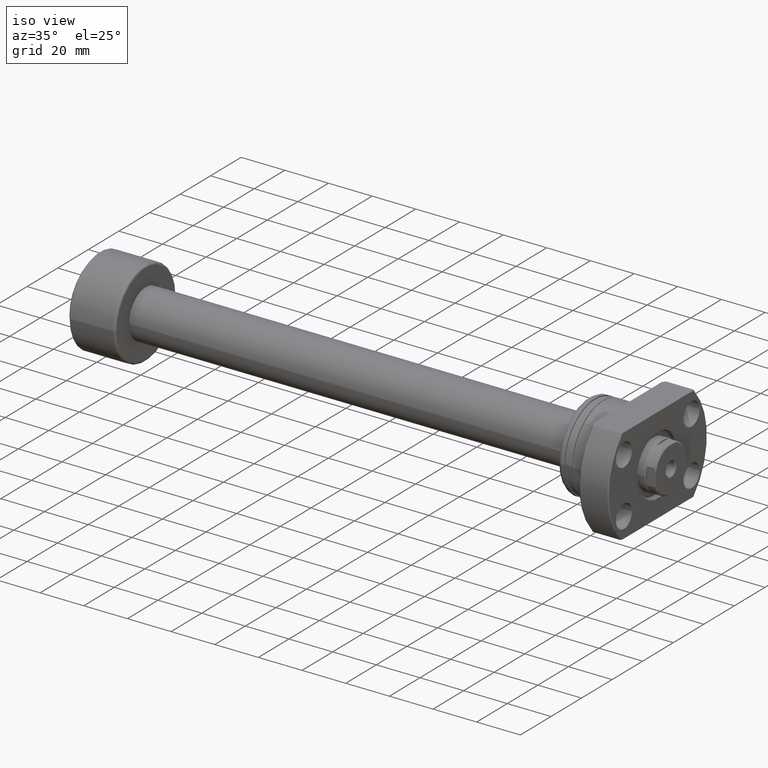
[diagram: clean part render]
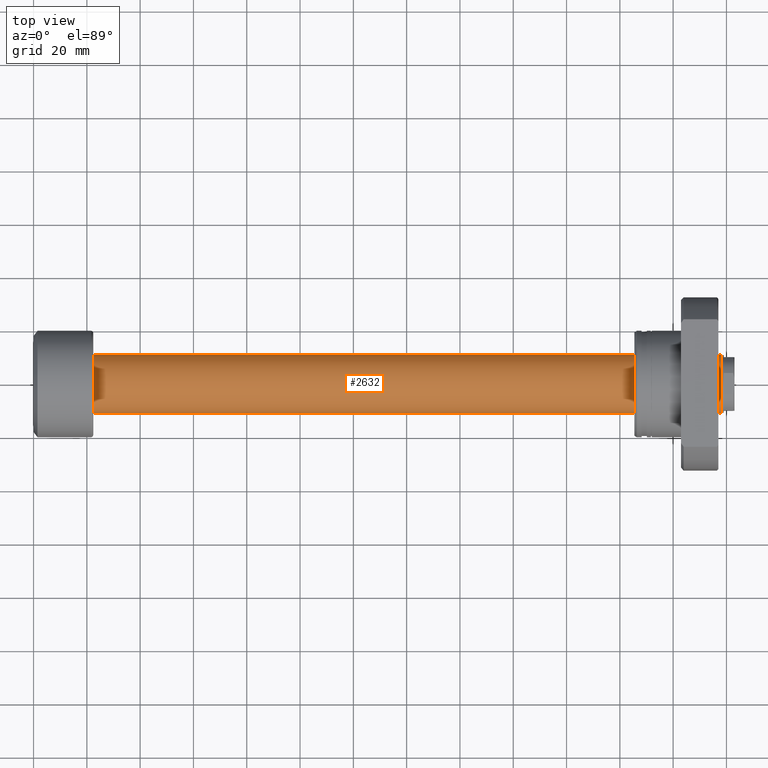
[diagram: tour spotlight — one face highlighted and labeled with its STEP entity id]
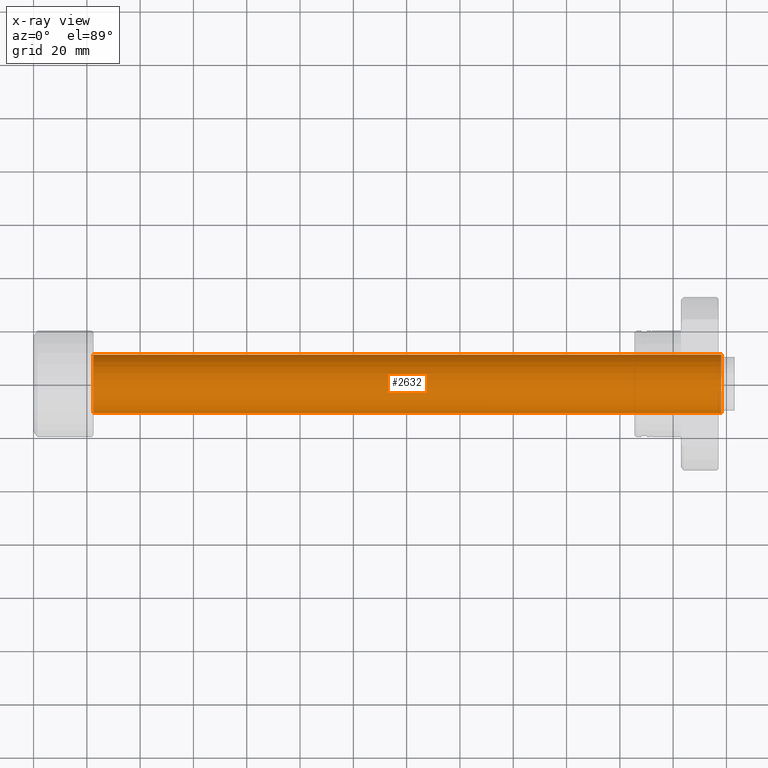
[diagram: x-ray of the same camera — body ghosted, this tour face saturated]
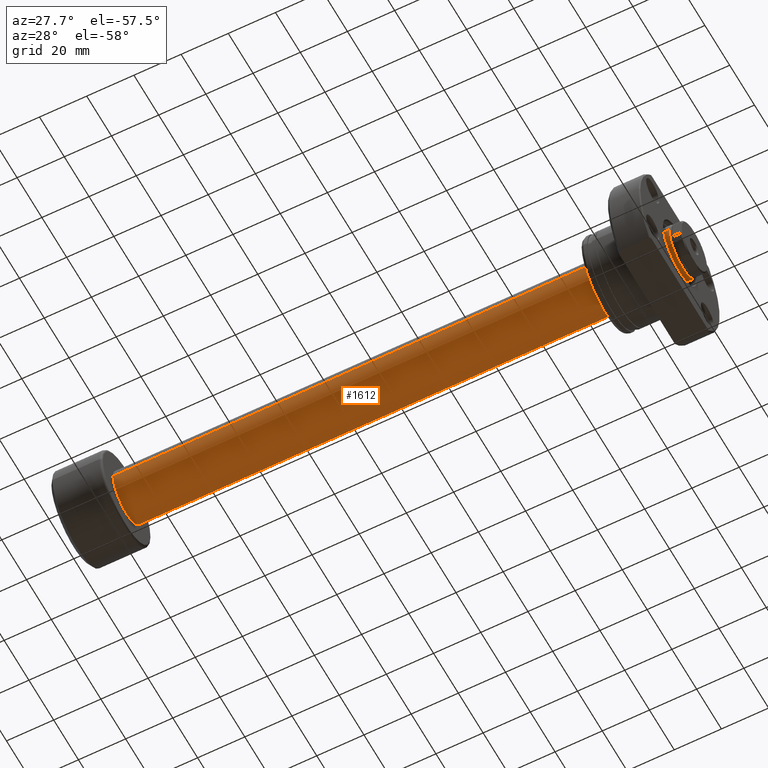
[diagram: tour spotlight — one face highlighted and labeled with its STEP entity id]
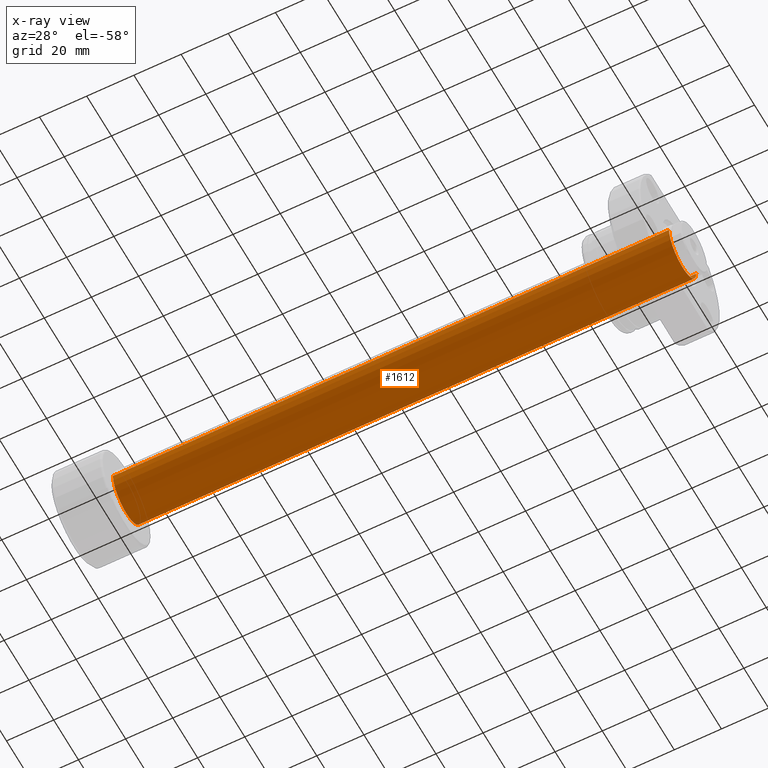
[diagram: x-ray of the same camera — body ghosted, this tour face saturated]
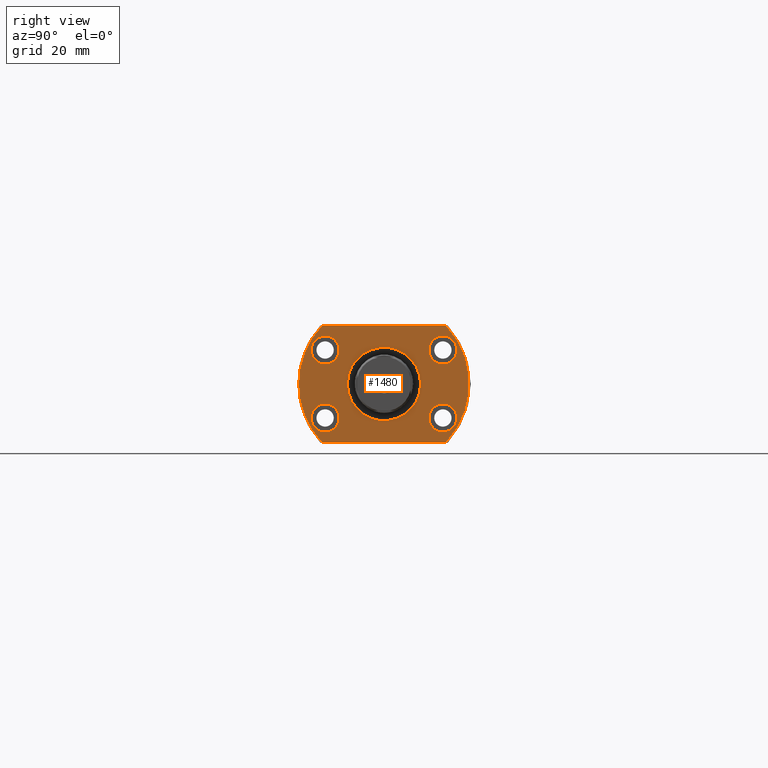
[diagram: tour spotlight — one face highlighted and labeled with its STEP entity id]
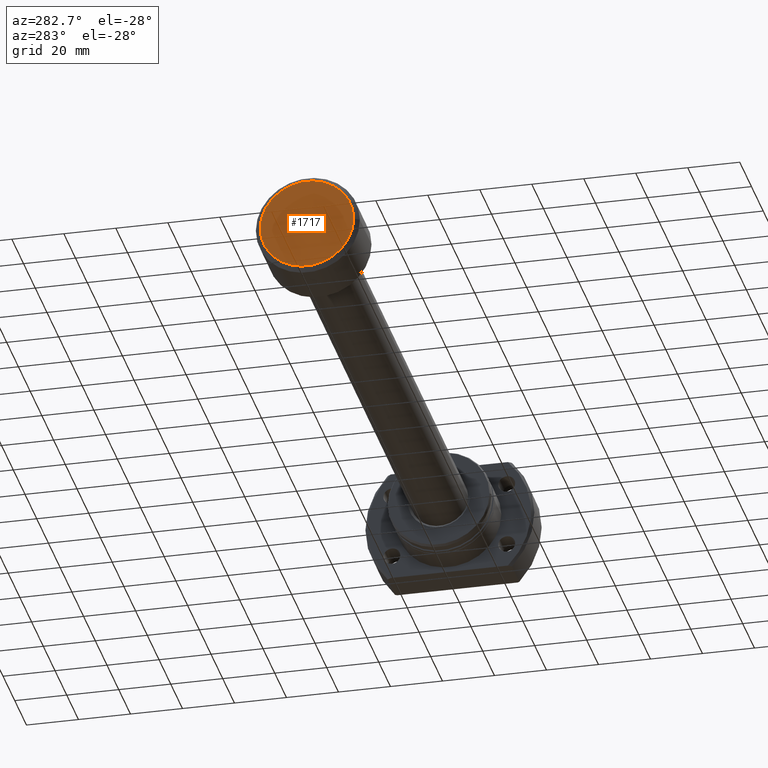
[diagram: tour spotlight — one face highlighted and labeled with its STEP entity id]
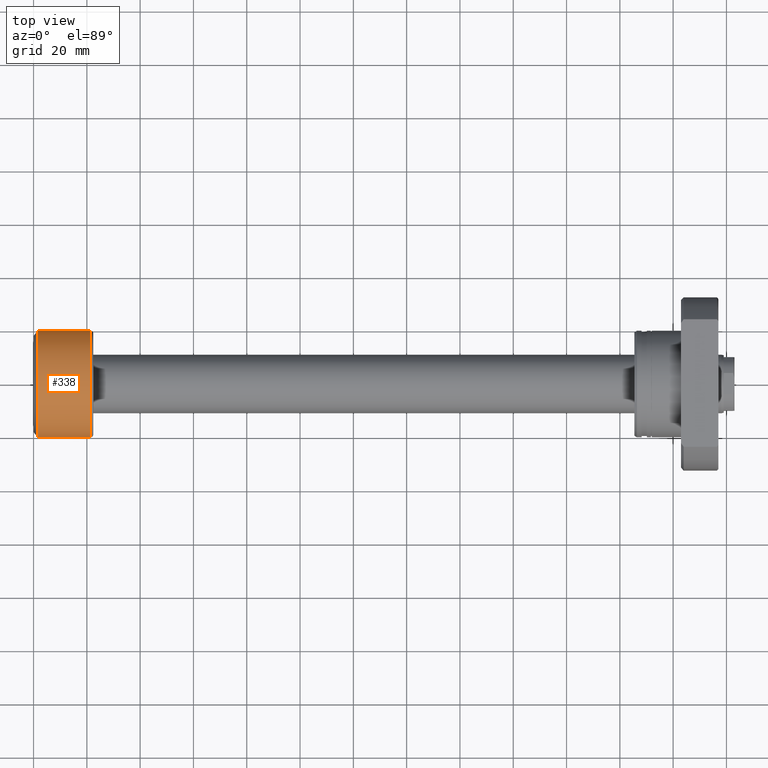
[diagram: tour spotlight — one face highlighted and labeled with its STEP entity id]
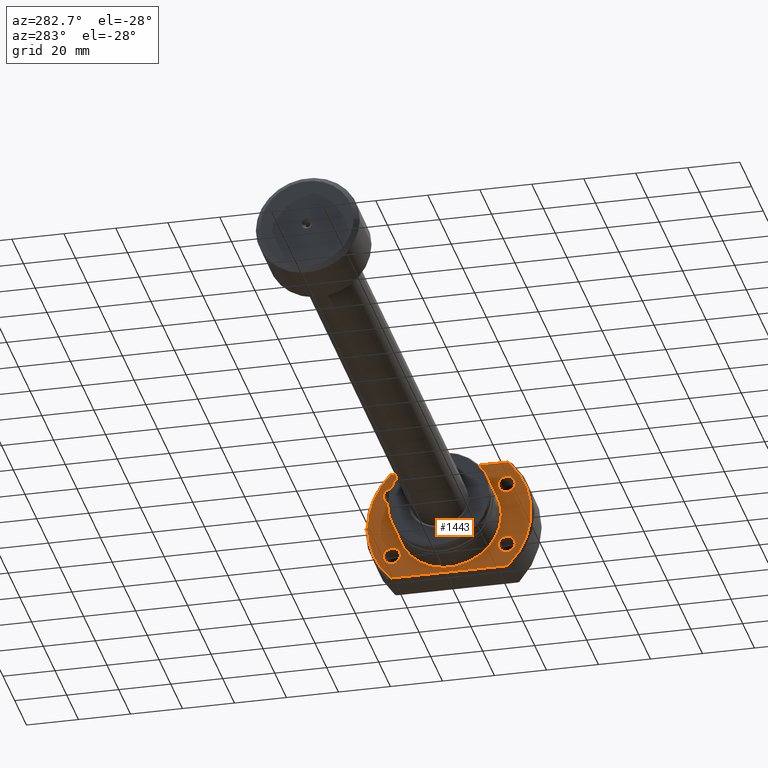
[diagram: tour spotlight — one face highlighted and labeled with its STEP entity id]
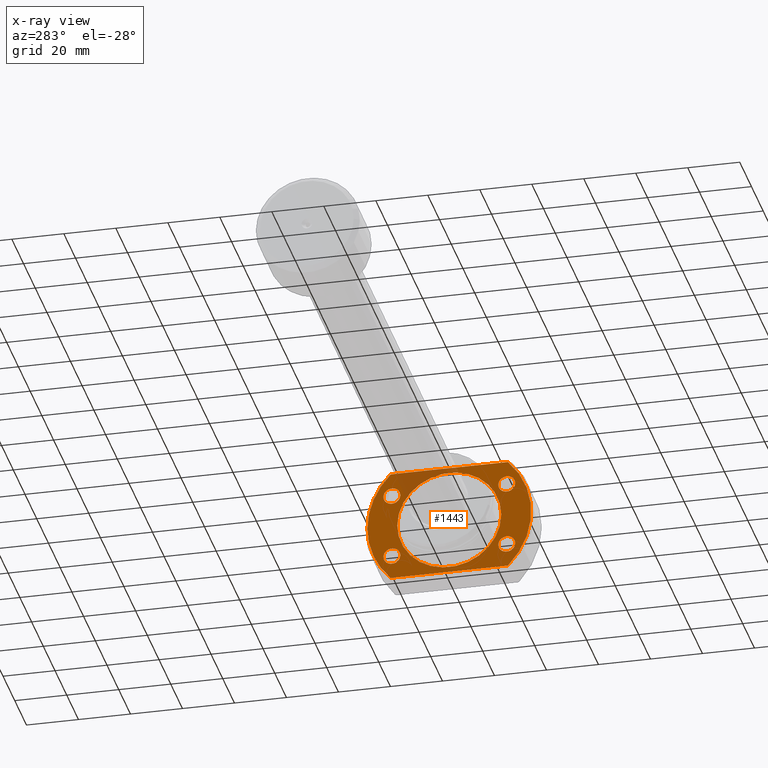
[diagram: x-ray of the same camera — body ghosted, this tour face saturated]
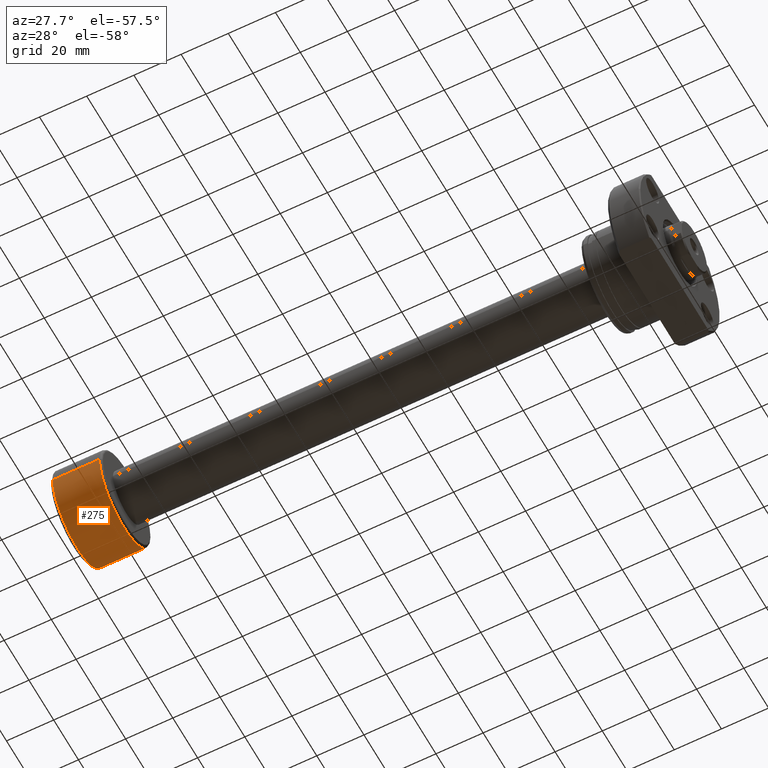
[diagram: tour spotlight — one face highlighted and labeled with its STEP entity id]
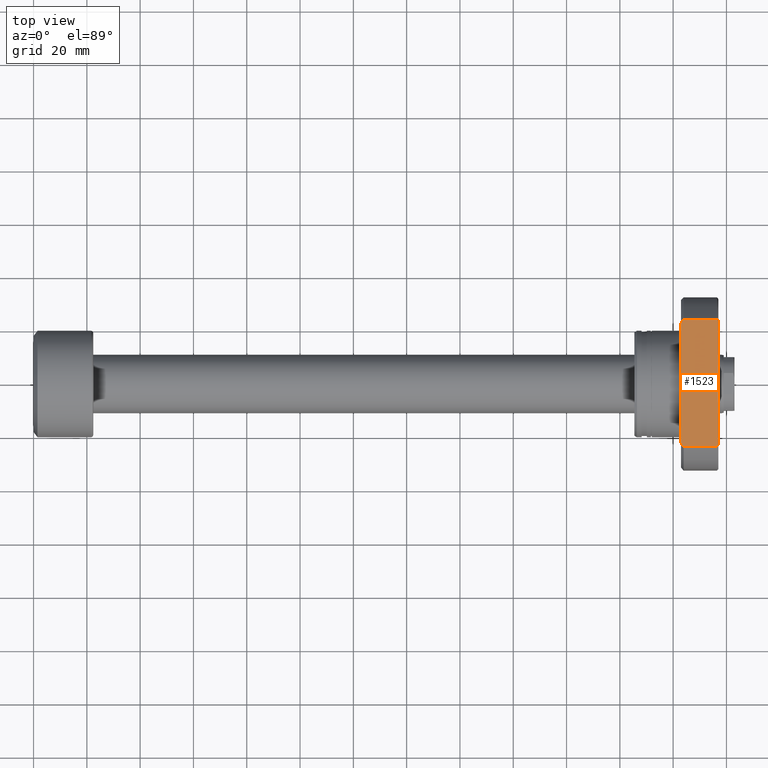
[diagram: tour spotlight — one face highlighted and labeled with its STEP entity id]
A machine part: a face-by-face anatomy tour. The part has 103 B-rep faces; the first image is the clean iso view, then the 8 largest visible faces are spotlighted one at a time (largest first), each with its STEP entity span.

Face 1 — top view, entity #2632. An x-ray twin of the same camera follows (body ghosted, this face saturated) — the face is partly hidden behind the body. In plain terms, the highlighted cylindrical surface (edge-blend (fillet) strip) has radius 11 mm, axis along (-1, -0, -0).
Definition (entity closure, byte-faithful):
#317 = DIRECTION ( 'NONE',  ( -1.000000000000000000, -1.069542322069065801E-17, -0.000000000000000000 ) ) ;
#392 = CARTESIAN_POINT ( 'NONE',  ( 258.0667575123237611, -11.00000000000019362, 0.000000000000000000 ) ) ;
#507 = EDGE_CURVE ( 'NONE', #1371, #2502, #2285, .T. ) ;
#621 = ORIENTED_EDGE ( 'NONE', *, *, #2974, .F. ) ;
#690 = VERTEX_POINT ( 'NONE', #2686 ) ;
#802 = AXIS2_PLACEMENT_3D ( 'NONE', #1854, #1578, #2058 ) ;
#926 = DIRECTION ( 'NONE',  ( -1.000000000000000000, -1.069542322069065801E-17, -0.000000000000000000 ) ) ;
#1084 = CARTESIAN_POINT ( 'NONE',  ( 258.0667575123237611, 11.00000000000020073, 1.347111479062112859E-15 ) ) ;
#1110 = VECTOR ( 'NONE', #1472, 1000.000000000000000 ) ;
#1131 = DIRECTION ( 'NONE',  ( 0.000000000000000000, -1.000000000000000000, 0.000000000000000000 ) ) ;
#1229 = CARTESIAN_POINT ( 'NONE',  ( 0.000000000000000000, 0.000000000000000000, 0.000000000000000000 ) ) ;
#1339 = CARTESIAN_POINT ( 'NONE',  ( 258.0667575123237611, 2.760133190785652966E-15, 0.000000000000000000 ) ) ;
#1351 = EDGE_CURVE ( 'NONE', #2502, #3048, #2769, .T. ) ;
#1371 = VERTEX_POINT ( 'NONE', #392 ) ;
#1378 = DIRECTION ( 'NONE',  ( -1.000000000000000000, -1.069542322069065801E-17, -0.000000000000000000 ) ) ;
#1472 = DIRECTION ( 'NONE',  ( -1.000000000000000000, -1.069542322069065801E-17, -0.000000000000000000 ) ) ;
#1492 = ORIENTED_EDGE ( 'NONE', *, *, #507, .T. ) ;
#1505 = VECTOR ( 'NONE', #317, 1000.000000000000000 ) ;
#1578 = DIRECTION ( 'NONE',  ( -1.000000000000000000, -1.069542322069065801E-17, -0.000000000000000000 ) ) ;
#1593 = ORIENTED_EDGE ( 'NONE', *, *, #2735, .F. ) ;
#1763 = LINE ( 'NONE', #2713, #1110 ) ;
#1854 = CARTESIAN_POINT ( 'NONE',  ( 22.40000000000000924, 2.395774801434708725E-16, 0.000000000000000000 ) ) ;
#1945 = FACE_OUTER_BOUND ( 'NONE', #3173, .T. ) ;
#1990 = CIRCLE ( 'NONE', #802, 11.00000000000000000 ) ;
#2017 = CARTESIAN_POINT ( 'NONE',  ( -1.176496554275982935E-16, 11.00000000000009770, 1.347111479062100632E-15 ) ) ;
#2058 = DIRECTION ( 'NONE',  ( 0.000000000000000000, -1.000000000000000000, 0.000000000000000000 ) ) ;
#2159 = CYLINDRICAL_SURFACE ( 'NONE', #2811, 11.00000000000009770 ) ;
#2211 = DIRECTION ( 'NONE',  ( 1.069542322069065955E-17, -1.000000000000000000, 0.000000000000000000 ) ) ;
#2285 = CIRCLE ( 'NONE', #2706, 11.00000000000019718 ) ;
#2367 = CARTESIAN_POINT ( 'NONE',  ( 22.40000000000000924, 11.00000000000000000, 1.347111479062094518E-15 ) ) ;
#2502 = VERTEX_POINT ( 'NONE', #1084 ) ;
#2618 = ORIENTED_EDGE ( 'NONE', *, *, #1351, .T. ) ;
#2632 = ADVANCED_FACE ( 'NONE', ( #1945 ), #2159, .T. ) ;
#2686 = CARTESIAN_POINT ( 'NONE',  ( 22.40000000000000924, -11.00000000000000000, 0.000000000000000000 ) ) ;
#2706 = AXIS2_PLACEMENT_3D ( 'NONE', #1339, #1378, #1131 ) ;
#2713 = CARTESIAN_POINT ( 'NONE',  ( 1.176496554275982935E-16, -11.00000000000009770, 0.000000000000000000 ) ) ;
#2735 = EDGE_CURVE ( 'NONE', #1371, #690, #1763, .T. ) ;
#2769 = LINE ( 'NONE', #2017, #1505 ) ;
#2811 = AXIS2_PLACEMENT_3D ( 'NONE', #1229, #926, #2211 ) ;
#2974 = EDGE_CURVE ( 'NONE', #690, #3048, #1990, .T. ) ;
#3048 = VERTEX_POINT ( 'NONE', #2367 ) ;
#3173 = EDGE_LOOP ( 'NONE', ( #1492, #2618, #621, #1593 ) ) ;

Face 2 — auxiliary view, entity #1612. An x-ray twin of the same camera follows (body ghosted, this face saturated) — the face is partly hidden behind the body. In plain terms, the highlighted cylindrical surface (edge-blend (fillet) strip) has radius 11 mm, axis along (-1, -0, -0).
Definition (entity closure, byte-faithful):
#317 = DIRECTION ( 'NONE',  ( -1.000000000000000000, -1.069542322069065801E-17, -0.000000000000000000 ) ) ;
#368 = AXIS2_PLACEMENT_3D ( 'NONE', #928, #1352, #3154 ) ;
#392 = CARTESIAN_POINT ( 'NONE',  ( 258.0667575123237611, -11.00000000000019362, 0.000000000000000000 ) ) ;
#611 = CARTESIAN_POINT ( 'NONE',  ( 22.40000000000000924, 2.395774801434708725E-16, 0.000000000000000000 ) ) ;
#690 = VERTEX_POINT ( 'NONE', #2686 ) ;
#744 = AXIS2_PLACEMENT_3D ( 'NONE', #836, #2335, #2790 ) ;
#767 = CYLINDRICAL_SURFACE ( 'NONE', #744, 11.00000000000009770 ) ;
#836 = CARTESIAN_POINT ( 'NONE',  ( 0.000000000000000000, 0.000000000000000000, 0.000000000000000000 ) ) ;
#924 = ORIENTED_EDGE ( 'NONE', *, *, #1351, .F. ) ;
#928 = CARTESIAN_POINT ( 'NONE',  ( 258.0667575123237611, 2.760133190785652966E-15, 0.000000000000000000 ) ) ;
#954 = EDGE_CURVE ( 'NONE', #3048, #690, #3077, .T. ) ;
#1084 = CARTESIAN_POINT ( 'NONE',  ( 258.0667575123237611, 11.00000000000020073, 1.347111479062112859E-15 ) ) ;
#1110 = VECTOR ( 'NONE', #1472, 1000.000000000000000 ) ;
#1245 = ORIENTED_EDGE ( 'NONE', *, *, #2735, .T. ) ;
#1351 = EDGE_CURVE ( 'NONE', #2502, #3048, #2769, .T. ) ;
#1352 = DIRECTION ( 'NONE',  ( -1.000000000000000000, -1.069542322069065801E-17, -0.000000000000000000 ) ) ;
#1371 = VERTEX_POINT ( 'NONE', #392 ) ;
#1373 = DIRECTION ( 'NONE',  ( 0.000000000000000000, -1.000000000000000000, 0.000000000000000000 ) ) ;
#1472 = DIRECTION ( 'NONE',  ( -1.000000000000000000, -1.069542322069065801E-17, -0.000000000000000000 ) ) ;
#1505 = VECTOR ( 'NONE', #317, 1000.000000000000000 ) ;
#1516 = EDGE_CURVE ( 'NONE', #2502, #1371, #1519, .T. ) ;
#1519 = CIRCLE ( 'NONE', #368, 11.00000000000019718 ) ;
#1546 = EDGE_LOOP ( 'NONE', ( #924, #2106, #1245, #2393 ) ) ;
#1612 = ADVANCED_FACE ( 'NONE', ( #2988 ), #767, .T. ) ;
#1763 = LINE ( 'NONE', #2713, #1110 ) ;
#1926 = AXIS2_PLACEMENT_3D ( 'NONE', #611, #2881, #1373 ) ;
#2017 = CARTESIAN_POINT ( 'NONE',  ( -1.176496554275982935E-16, 11.00000000000009770, 1.347111479062100632E-15 ) ) ;
#2106 = ORIENTED_EDGE ( 'NONE', *, *, #1516, .T. ) ;
#2335 = DIRECTION ( 'NONE',  ( -1.000000000000000000, -1.069542322069065801E-17, -0.000000000000000000 ) ) ;
#2367 = CARTESIAN_POINT ( 'NONE',  ( 22.40000000000000924, 11.00000000000000000, 1.347111479062094518E-15 ) ) ;
#2393 = ORIENTED_EDGE ( 'NONE', *, *, #954, .F. ) ;
#2502 = VERTEX_POINT ( 'NONE', #1084 ) ;
#2686 = CARTESIAN_POINT ( 'NONE',  ( 22.40000000000000924, -11.00000000000000000, 0.000000000000000000 ) ) ;
#2713 = CARTESIAN_POINT ( 'NONE',  ( 1.176496554275982935E-16, -11.00000000000009770, 0.000000000000000000 ) ) ;
#2735 = EDGE_CURVE ( 'NONE', #1371, #690, #1763, .T. ) ;
#2769 = LINE ( 'NONE', #2017, #1505 ) ;
#2790 = DIRECTION ( 'NONE',  ( 1.069542322069065955E-17, -1.000000000000000000, 0.000000000000000000 ) ) ;
#2881 = DIRECTION ( 'NONE',  ( -1.000000000000000000, -1.069542322069065801E-17, -0.000000000000000000 ) ) ;
#2988 = FACE_OUTER_BOUND ( 'NONE', #1546, .T. ) ;
#3048 = VERTEX_POINT ( 'NONE', #2367 ) ;
#3077 = CIRCLE ( 'NONE', #1926, 11.00000000000000000 ) ;
#3154 = DIRECTION ( 'NONE',  ( 0.000000000000000000, -1.000000000000000000, 0.000000000000000000 ) ) ;

Face 3 — right view, entity #1480. In plain terms, the highlighted planar face has unit normal (-1, -0, 0).
Definition (entity closure, byte-faithful):
#19 = VECTOR ( 'NONE', #613, 1000.000000000000000 ) ;
#20 = EDGE_CURVE ( 'NONE', #1498, #79, #838, .T. ) ;
#68 = AXIS2_PLACEMENT_3D ( 'NONE', #2641, #1202, #414 ) ;
#79 = VERTEX_POINT ( 'NONE', #3169 ) ;
#129 = CARTESIAN_POINT ( 'NONE',  ( 31.50000000000000000, -9.092368251749008943E-13, 0.000000000000000000 ) ) ;
#151 = AXIS2_PLACEMENT_3D ( 'NONE', #1652, #2176, #3160 ) ;
#176 = VERTEX_POINT ( 'NONE', #1615 ) ;
#182 = VERTEX_POINT ( 'NONE', #1227 ) ;
#196 = CARTESIAN_POINT ( 'NONE',  ( 31.50000000000000000, -23.23790007724450035, -22.00000000000000355 ) ) ;
#217 = CARTESIAN_POINT ( 'NONE',  ( 31.49999999999920774, -27.35000000000091092, -12.75000000000000178 ) ) ;
#220 = DIRECTION ( 'NONE',  ( 2.907726969256361977E-14, 1.000000000000000000, 0.000000000000000000 ) ) ;
#240 = VERTEX_POINT ( 'NONE', #217 ) ;
#242 = DIRECTION ( 'NONE',  ( 1.000000000000000000, -2.886466111666351885E-14, 0.000000000000000000 ) ) ;
#246 = CARTESIAN_POINT ( 'NONE',  ( 31.50000000000063949, 22.09999999999909193, -12.75000000000000178 ) ) ;
#280 = DIRECTION ( 'NONE',  ( -1.000000000000000000, -2.721437331438560389E-17, 0.000000000000000000 ) ) ;
#287 = EDGE_LOOP ( 'NONE', ( #3125, #564 ) ) ;
#305 = VERTEX_POINT ( 'NONE', #2729 ) ;
#309 = DIRECTION ( 'NONE',  ( 1.000000000000000000, -2.887798767815668620E-14, -6.310887241768094443E-30 ) ) ;
#325 = AXIS2_PLACEMENT_3D ( 'NONE', #1748, #2459, #1502 ) ;
#335 = VERTEX_POINT ( 'NONE', #1343 ) ;
#365 = EDGE_CURVE ( 'NONE', #79, #1498, #1506, .T. ) ;
#373 = CIRCLE ( 'NONE', #2289, 5.250000000000000888 ) ;
#389 = EDGE_CURVE ( 'NONE', #240, #305, #2848, .T. ) ;
#414 = DIRECTION ( 'NONE',  ( 0.000000000000000000, 1.000000000000000000, 0.000000000000000000 ) ) ;
#426 = FACE_BOUND ( 'NONE', #1140, .T. ) ;
#443 = DIRECTION ( 'NONE',  ( 2.907726969256361977E-14, 1.000000000000000000, 0.000000000000000000 ) ) ;
#448 = CARTESIAN_POINT ( 'NONE',  ( 31.50000000000000000, -32.00000000000000000, 0.000000000000000000 ) ) ;
#491 = VERTEX_POINT ( 'NONE', #2617 ) ;
#492 = EDGE_CURVE ( 'NONE', #491, #182, #840, .T. ) ;
#529 = CIRCLE ( 'NONE', #636, 13.74999999999917577 ) ;
#564 = ORIENTED_EDGE ( 'NONE', *, *, #2694, .F. ) ;
#595 = DIRECTION ( 'NONE',  ( 2.907726969256361977E-14, 1.000000000000000000, 0.000000000000000000 ) ) ;
#613 = DIRECTION ( 'NONE',  ( -2.721437331438560389E-17, 1.000000000000000000, -0.000000000000000000 ) ) ;
#631 = CIRCLE ( 'NONE', #1871, 5.250000000000000888 ) ;
#636 = AXIS2_PLACEMENT_3D ( 'NONE', #1019, #280, #2270 ) ;
#655 = EDGE_LOOP ( 'NONE', ( #1324, #877 ) ) ;
#659 = VERTEX_POINT ( 'NONE', #2398 ) ;
#660 = DIRECTION ( 'NONE',  ( 2.907726969256361977E-14, 1.000000000000000000, 0.000000000000000000 ) ) ;
#678 = DIRECTION ( 'NONE',  ( 1.000000000000000000, -2.887798767815668620E-14, -6.310887241768094443E-30 ) ) ;
#684 = PLANE ( 'NONE',  #1931 ) ;
#713 = VERTEX_POINT ( 'NONE', #196 ) ;
#722 = EDGE_CURVE ( 'NONE', #2462, #335, #1364, .T. ) ;
#777 = EDGE_CURVE ( 'NONE', #2256, #2371, #373, .T. ) ;
#782 = CARTESIAN_POINT ( 'NONE',  ( 31.50000000000063949, 22.09999999999909193, 12.74999999999999822 ) ) ;
#815 = EDGE_CURVE ( 'NONE', #176, #659, #2031, .T. ) ;
#826 = ORIENTED_EDGE ( 'NONE', *, *, #2032, .F. ) ;
#838 = CIRCLE ( 'NONE', #2845, 5.250000000000000888 ) ;
#840 = CIRCLE ( 'NONE', #2337, 32.00000000000000000 ) ;
#851 = EDGE_CURVE ( 'NONE', #182, #713, #1556, .T. ) ;
#877 = ORIENTED_EDGE ( 'NONE', *, *, #1436, .T. ) ;
#935 = FACE_BOUND ( 'NONE', #287, .T. ) ;
#945 = AXIS2_PLACEMENT_3D ( 'NONE', #129, #1774, #1788 ) ;
#970 = DIRECTION ( 'NONE',  ( 1.000000000000000000, -2.886466111666351885E-14, 0.000000000000000000 ) ) ;
#1019 = CARTESIAN_POINT ( 'NONE',  ( 31.50000000000000000, -9.092368251749008943E-13, 0.000000000000000000 ) ) ;
#1029 = CARTESIAN_POINT ( 'NONE',  ( 31.50000000000079226, 27.34999999999909548, 12.74999999999999822 ) ) ;
#1038 = ORIENTED_EDGE ( 'NONE', *, *, #492, .T. ) ;
#1104 = FACE_BOUND ( 'NONE', #655, .T. ) ;
#1140 = EDGE_LOOP ( 'NONE', ( #2351, #2441 ) ) ;
#1146 = LINE ( 'NONE', #2675, #1374 ) ;
#1195 = DIRECTION ( 'NONE',  ( -1.000000000000000000, -2.721437331438560389E-17, 0.000000000000000000 ) ) ;
#1202 = DIRECTION ( 'NONE',  ( 1.000000000000000000, 2.721437331438560389E-17, -0.000000000000000000 ) ) ;
#1227 = CARTESIAN_POINT ( 'NONE',  ( 31.50000000000000000, -32.00000000000000000, 0.000000000000000000 ) ) ;
#1282 = ORIENTED_EDGE ( 'NONE', *, *, #1420, .T. ) ;
#1324 = ORIENTED_EDGE ( 'NONE', *, *, #1553, .T. ) ;
#1343 = CARTESIAN_POINT ( 'NONE',  ( 31.50000000000000000, 23.23790007724450035, 22.00000000000000355 ) ) ;
#1362 = AXIS2_PLACEMENT_3D ( 'NONE', #782, #242, #1762 ) ;
#1364 = CIRCLE ( 'NONE', #68, 32.00000000000000000 ) ;
#1367 = DIRECTION ( 'NONE',  ( 2.907726969256361977E-14, 1.000000000000000000, 0.000000000000000000 ) ) ;
#1374 = VECTOR ( 'NONE', #1433, 1000.000000000000000 ) ;
#1420 = EDGE_CURVE ( 'NONE', #713, #2462, #2266, .T. ) ;
#1433 = DIRECTION ( 'NONE',  ( -0.000000000000000000, 1.000000000000000000, 0.000000000000000000 ) ) ;
#1436 = EDGE_CURVE ( 'NONE', #2435, #3205, #2347, .T. ) ;
#1480 = ADVANCED_FACE ( 'NONE', ( #1104, #2634, #426, #3163, #935, #1917 ), #684, .F. ) ;
#1497 = CARTESIAN_POINT ( 'NONE',  ( 31.50000000000000000, 13.74999999999826805, 0.000000000000000000 ) ) ;
#1498 = VERTEX_POINT ( 'NONE', #3111 ) ;
#1502 = DIRECTION ( 'NONE',  ( 2.907726969256361977E-14, 1.000000000000000000, 0.000000000000000000 ) ) ;
#1506 = CIRCLE ( 'NONE', #2081, 5.250000000000000888 ) ;
#1510 = CARTESIAN_POINT ( 'NONE',  ( 31.50000000000000000, -13.75000000000088107, 1.683889348827607301E-15 ) ) ;
#1513 = AXIS2_PLACEMENT_3D ( 'NONE', #246, #678, #443 ) ;
#1553 = EDGE_CURVE ( 'NONE', #3205, #2435, #529, .T. ) ;
#1556 = CIRCLE ( 'NONE', #151, 32.00000000000000000 ) ;
#1615 = CARTESIAN_POINT ( 'NONE',  ( 31.50000000000079226, 27.34999999999909548, -12.75000000000000178 ) ) ;
#1642 = CARTESIAN_POINT ( 'NONE',  ( 31.49999999999936051, -22.10000000000091092, 12.74999999999999822 ) ) ;
#1652 = CARTESIAN_POINT ( 'NONE',  ( 31.50000000000000000, 8.572527594031465301E-16, 0.000000000000000000 ) ) ;
#1700 = CARTESIAN_POINT ( 'NONE',  ( 31.50000000000063949, 22.09999999999909193, -12.75000000000000178 ) ) ;
#1748 = CARTESIAN_POINT ( 'NONE',  ( 31.49999999999936051, -22.10000000000091092, -12.75000000000000178 ) ) ;
#1762 = DIRECTION ( 'NONE',  ( 2.907726969256361977E-14, 1.000000000000000000, 0.000000000000000000 ) ) ;
#1774 = DIRECTION ( 'NONE',  ( -1.000000000000000000, -2.721437331438560389E-17, 0.000000000000000000 ) ) ;
#1788 = DIRECTION ( 'NONE',  ( 0.000000000000000000, -1.000000000000000000, 0.000000000000000000 ) ) ;
#1810 = DIRECTION ( 'NONE',  ( 2.907726969256361977E-14, 1.000000000000000000, 0.000000000000000000 ) ) ;
#1838 = DIRECTION ( 'NONE',  ( 0.000000000000000000, 1.000000000000000000, 0.000000000000000000 ) ) ;
#1871 = AXIS2_PLACEMENT_3D ( 'NONE', #1700, #2438, #220 ) ;
#1885 = DIRECTION ( 'NONE',  ( 1.000000000000000000, -2.887798767815668620E-14, -6.310887241768094443E-30 ) ) ;
#1917 = FACE_OUTER_BOUND ( 'NONE', #2424, .T. ) ;
#1931 = AXIS2_PLACEMENT_3D ( 'NONE', #448, #1195, #2181 ) ;
#1967 = CARTESIAN_POINT ( 'NONE',  ( 31.50000000000048672, 16.84999999999909193, 12.74999999999999822 ) ) ;
#2031 = CIRCLE ( 'NONE', #1513, 5.250000000000000888 ) ;
#2032 = EDGE_CURVE ( 'NONE', #2371, #2256, #2245, .T. ) ;
#2081 = AXIS2_PLACEMENT_3D ( 'NONE', #1642, #1885, #1810 ) ;
#2176 = DIRECTION ( 'NONE',  ( 1.000000000000000000, 2.721437331438560389E-17, -0.000000000000000000 ) ) ;
#2178 = ORIENTED_EDGE ( 'NONE', *, *, #3151, .F. ) ;
#2181 = DIRECTION ( 'NONE',  ( 2.721437331438560389E-17, -1.000000000000000000, 0.000000000000000000 ) ) ;
#2245 = CIRCLE ( 'NONE', #1362, 5.250000000000000888 ) ;
#2249 = EDGE_LOOP ( 'NONE', ( #3212, #2394 ) ) ;
#2256 = VERTEX_POINT ( 'NONE', #1967 ) ;
#2266 = LINE ( 'NONE', #2295, #19 ) ;
#2270 = DIRECTION ( 'NONE',  ( 0.000000000000000000, -1.000000000000000000, 0.000000000000000000 ) ) ;
#2289 = AXIS2_PLACEMENT_3D ( 'NONE', #3211, #970, #660 ) ;
#2295 = CARTESIAN_POINT ( 'NONE',  ( 31.50000000000000000, -32.00000000000000000, -22.00000000000000355 ) ) ;
#2337 = AXIS2_PLACEMENT_3D ( 'NONE', #2338, #3086, #1838 ) ;
#2338 = CARTESIAN_POINT ( 'NONE',  ( 31.50000000000000000, 8.572527594031465301E-16, 0.000000000000000000 ) ) ;
#2347 = CIRCLE ( 'NONE', #945, 13.74999999999917577 ) ;
#2351 = ORIENTED_EDGE ( 'NONE', *, *, #20, .F. ) ;
#2371 = VERTEX_POINT ( 'NONE', #1029 ) ;
#2394 = ORIENTED_EDGE ( 'NONE', *, *, #389, .F. ) ;
#2398 = CARTESIAN_POINT ( 'NONE',  ( 31.50000000000048672, 16.84999999999909193, -12.75000000000000178 ) ) ;
#2402 = ORIENTED_EDGE ( 'NONE', *, *, #777, .F. ) ;
#2424 = EDGE_LOOP ( 'NONE', ( #2178, #1038, #3066, #1282, #2552 ) ) ;
#2435 = VERTEX_POINT ( 'NONE', #1510 ) ;
#2438 = DIRECTION ( 'NONE',  ( 1.000000000000000000, -2.887798767815668620E-14, -6.310887241768094443E-30 ) ) ;
#2441 = ORIENTED_EDGE ( 'NONE', *, *, #365, .F. ) ;
#2459 = DIRECTION ( 'NONE',  ( 1.000000000000000000, -2.887798767815668620E-14, -6.310887241768094443E-30 ) ) ;
#2462 = VERTEX_POINT ( 'NONE', #3027 ) ;
#2540 = DIRECTION ( 'NONE',  ( 1.000000000000000000, -2.887798767815668620E-14, -6.310887241768094443E-30 ) ) ;
#2552 = ORIENTED_EDGE ( 'NONE', *, *, #722, .T. ) ;
#2617 = CARTESIAN_POINT ( 'NONE',  ( 31.50000000000000000, -23.23790007724449680, 22.00000000000000355 ) ) ;
#2634 = FACE_BOUND ( 'NONE', #2786, .T. ) ;
#2641 = CARTESIAN_POINT ( 'NONE',  ( 31.50000000000000000, 8.572527594031465301E-16, 0.000000000000000000 ) ) ;
#2675 = CARTESIAN_POINT ( 'NONE',  ( 31.50000000000000000, 23.92174742781217489, 22.00000000000000355 ) ) ;
#2694 = EDGE_CURVE ( 'NONE', #659, #176, #631, .T. ) ;
#2729 = CARTESIAN_POINT ( 'NONE',  ( 31.49999999999951328, -16.85000000000091092, -12.75000000000000178 ) ) ;
#2756 = AXIS2_PLACEMENT_3D ( 'NONE', #3040, #309, #595 ) ;
#2786 = EDGE_LOOP ( 'NONE', ( #826, #2402 ) ) ;
#2801 = EDGE_CURVE ( 'NONE', #305, #240, #2911, .T. ) ;
#2845 = AXIS2_PLACEMENT_3D ( 'NONE', #3041, #2540, #1367 ) ;
#2848 = CIRCLE ( 'NONE', #2756, 5.250000000000000888 ) ;
#2911 = CIRCLE ( 'NONE', #325, 5.250000000000000888 ) ;
#3027 = CARTESIAN_POINT ( 'NONE',  ( 31.50000000000000000, 23.23790007724450035, -22.00000000000000355 ) ) ;
#3040 = CARTESIAN_POINT ( 'NONE',  ( 31.49999999999936051, -22.10000000000091092, -12.75000000000000178 ) ) ;
#3041 = CARTESIAN_POINT ( 'NONE',  ( 31.49999999999936051, -22.10000000000091092, 12.74999999999999822 ) ) ;
#3066 = ORIENTED_EDGE ( 'NONE', *, *, #851, .T. ) ;
#3086 = DIRECTION ( 'NONE',  ( 1.000000000000000000, 2.721437331438560389E-17, -0.000000000000000000 ) ) ;
#3111 = CARTESIAN_POINT ( 'NONE',  ( 31.49999999999951328, -16.85000000000091092, 12.74999999999999822 ) ) ;
#3125 = ORIENTED_EDGE ( 'NONE', *, *, #815, .F. ) ;
#3151 = EDGE_CURVE ( 'NONE', #491, #335, #1146, .T. ) ;
#3160 = DIRECTION ( 'NONE',  ( 0.000000000000000000, 1.000000000000000000, 0.000000000000000000 ) ) ;
#3163 = FACE_BOUND ( 'NONE', #2249, .T. ) ;
#3169 = CARTESIAN_POINT ( 'NONE',  ( 31.49999999999920774, -27.35000000000091092, 12.74999999999999822 ) ) ;
#3205 = VERTEX_POINT ( 'NONE', #1497 ) ;
#3211 = CARTESIAN_POINT ( 'NONE',  ( 31.50000000000063949, 22.09999999999909193, 12.74999999999999822 ) ) ;
#3212 = ORIENTED_EDGE ( 'NONE', *, *, #2801, .F. ) ;

Face 4 — auxiliary view, entity #1717. In plain terms, the highlighted planar face has unit normal (-1, -0, 0).
Definition (entity closure, byte-faithful):
#99 = DIRECTION ( 'NONE',  ( 1.069542322069065647E-17, -1.000000000000000000, 0.000000000000000000 ) ) ;
#289 = CARTESIAN_POINT ( 'NONE',  ( 2.011846620492804129E-15, 2.151755106128676308E-32, 0.000000000000000000 ) ) ;
#378 = AXIS2_PLACEMENT_3D ( 'NONE', #1766, #850, #2282 ) ;
#593 = CARTESIAN_POINT ( 'NONE',  ( 1.005923310246402065E-15, 2.541142108230715670E-16, -2.074999999999965539 ) ) ;
#606 = VERTEX_POINT ( 'NONE', #3145 ) ;
#835 = DIRECTION ( 'NONE',  ( -1.000000000000000000, -1.069542322069065801E-17, -0.000000000000000000 ) ) ;
#850 = DIRECTION ( 'NONE',  ( 1.000000000000000000, 1.069542322069065801E-17, 0.000000000000000000 ) ) ;
#987 = VERTEX_POINT ( 'NONE', #2480 ) ;
#1023 = EDGE_CURVE ( 'NONE', #606, #2982, #1461, .T. ) ;
#1051 = EDGE_CURVE ( 'NONE', #2982, #606, #1616, .T. ) ;
#1201 = FACE_OUTER_BOUND ( 'NONE', #2658, .T. ) ;
#1220 = AXIS2_PLACEMENT_3D ( 'NONE', #1785, #2064, #2806 ) ;
#1346 = CARTESIAN_POINT ( 'NONE',  ( 2.204364238465235822E-15, -18.00000000000000355, 2.326828918379971365E-15 ) ) ;
#1460 = AXIS2_PLACEMENT_3D ( 'NONE', #289, #835, #99 ) ;
#1461 = CIRCLE ( 'NONE', #378, 2.074999999999965539 ) ;
#1570 = ORIENTED_EDGE ( 'NONE', *, *, #1051, .T. ) ;
#1616 = CIRCLE ( 'NONE', #2719, 2.074999999999965539 ) ;
#1717 = ADVANCED_FACE ( 'NONE', ( #2212, #1201 ), #3172, .T. ) ;
#1766 = CARTESIAN_POINT ( 'NONE',  ( 1.005923310246402065E-15, 0.000000000000000000, 0.000000000000000000 ) ) ;
#1785 = CARTESIAN_POINT ( 'NONE',  ( 2.011846620492804129E-15, 2.151755106128676308E-32, 0.000000000000000000 ) ) ;
#1816 = DIRECTION ( 'NONE',  ( 1.069542322069064722E-17, -1.000000000000000000, 0.000000000000000000 ) ) ;
#1929 = CIRCLE ( 'NONE', #1460, 18.00000000000000355 ) ;
#2064 = DIRECTION ( 'NONE',  ( -1.000000000000000000, -1.069542322069065801E-17, -0.000000000000000000 ) ) ;
#2154 = ORIENTED_EDGE ( 'NONE', *, *, #2510, .T. ) ;
#2192 = CARTESIAN_POINT ( 'NONE',  ( 1.005923310246402065E-15, 1.075877553064338154E-32, 0.000000000000000000 ) ) ;
#2198 = CIRCLE ( 'NONE', #1220, 18.00000000000000355 ) ;
#2212 = FACE_BOUND ( 'NONE', #3210, .T. ) ;
#2225 = DIRECTION ( 'NONE',  ( -1.000000000000000000, -1.069542322069065801E-17, 0.000000000000000000 ) ) ;
#2263 = ORIENTED_EDGE ( 'NONE', *, *, #1023, .T. ) ;
#2282 = DIRECTION ( 'NONE',  ( 1.069542322069064722E-17, -1.000000000000000000, 0.000000000000000000 ) ) ;
#2305 = CARTESIAN_POINT ( 'NONE',  ( 1.005923310246402065E-15, 0.000000000000000000, 0.000000000000000000 ) ) ;
#2463 = EDGE_CURVE ( 'NONE', #987, #2952, #1929, .T. ) ;
#2480 = CARTESIAN_POINT ( 'NONE',  ( 1.819329002520372041E-15, 18.00000000000000355, 0.000000000000000000 ) ) ;
#2510 = EDGE_CURVE ( 'NONE', #2952, #987, #2198, .T. ) ;
#2537 = ORIENTED_EDGE ( 'NONE', *, *, #2463, .T. ) ;
#2605 = AXIS2_PLACEMENT_3D ( 'NONE', #2192, #2225, #3225 ) ;
#2658 = EDGE_LOOP ( 'NONE', ( #2537, #2154 ) ) ;
#2719 = AXIS2_PLACEMENT_3D ( 'NONE', #2305, #3078, #1816 ) ;
#2806 = DIRECTION ( 'NONE',  ( 1.069542322069065647E-17, -1.000000000000000000, 0.000000000000000000 ) ) ;
#2952 = VERTEX_POINT ( 'NONE', #1346 ) ;
#2982 = VERTEX_POINT ( 'NONE', #593 ) ;
#3078 = DIRECTION ( 'NONE',  ( 1.000000000000000000, 1.069542322069065801E-17, 0.000000000000000000 ) ) ;
#3145 = CARTESIAN_POINT ( 'NONE',  ( 1.005923310246402065E-15, 0.000000000000000000, 2.074999999999965539 ) ) ;
#3172 = PLANE ( 'NONE',  #2605 ) ;
#3210 = EDGE_LOOP ( 'NONE', ( #2263, #1570 ) ) ;
#3225 = DIRECTION ( 'NONE',  ( 1.069542322069065801E-17, -1.000000000000000000, 0.000000000000000000 ) ) ;

Face 5 — top view, entity #338. In plain terms, the highlighted cylindrical surface (partial cylindrical patch) has radius 20 mm, axis along (-1, -0, -0).
Definition (entity closure, byte-faithful):
#6 = VECTOR ( 'NONE', #2695, 1000.000000000000000 ) ;
#13 = CARTESIAN_POINT ( 'NONE',  ( -2.139084644138131786E-16, 20.00000000000000000, 2.449293598294706513E-15 ) ) ;
#33 = LINE ( 'NONE', #13, #6 ) ;
#46 = DIRECTION ( 'NONE',  ( -1.000000000000000000, -1.069542322069065801E-17, -0.000000000000000000 ) ) ;
#76 = VERTEX_POINT ( 'NONE', #2912 ) ;
#82 = DIRECTION ( 'NONE',  ( 0.000000000000000000, -1.000000000000000000, 0.000000000000000000 ) ) ;
#222 = ORIENTED_EDGE ( 'NONE', *, *, #237, .T. ) ;
#237 = EDGE_CURVE ( 'NONE', #76, #1231, #33, .T. ) ;
#338 = ADVANCED_FACE ( 'NONE', ( #813 ), #1792, .T. ) ;
#353 = CARTESIAN_POINT ( 'NONE',  ( 21.40000000000000924, -20.00000000000000000, 0.000000000000000000 ) ) ;
#520 = CARTESIAN_POINT ( 'NONE',  ( 2.139084644138131786E-16, -20.00000000000000000, 0.000000000000000000 ) ) ;
#813 = FACE_OUTER_BOUND ( 'NONE', #1879, .T. ) ;
#817 = CARTESIAN_POINT ( 'NONE',  ( 1.500000000000002442, 20.00000000000000000, 0.000000000000000000 ) ) ;
#827 = CARTESIAN_POINT ( 'NONE',  ( 0.000000000000000000, 0.000000000000000000, 0.000000000000000000 ) ) ;
#1043 = LINE ( 'NONE', #520, #2345 ) ;
#1077 = ORIENTED_EDGE ( 'NONE', *, *, #2486, .T. ) ;
#1088 = DIRECTION ( 'NONE',  ( -1.000000000000000000, -1.069542322069065801E-17, -0.000000000000000000 ) ) ;
#1098 = CARTESIAN_POINT ( 'NONE',  ( 21.40000000000000924, 2.288820569227802283E-16, 0.000000000000000000 ) ) ;
#1231 = VERTEX_POINT ( 'NONE', #817 ) ;
#1257 = DIRECTION ( 'NONE',  ( 1.084202172485504434E-17, -1.000000000000000000, 0.000000000000000000 ) ) ;
#1292 = DIRECTION ( 'NONE',  ( -1.000000000000000000, -1.069542322069065801E-17, -0.000000000000000000 ) ) ;
#1412 = CIRCLE ( 'NONE', #1825, 20.00000000000000000 ) ;
#1462 = ORIENTED_EDGE ( 'NONE', *, *, #2826, .F. ) ;
#1574 = ORIENTED_EDGE ( 'NONE', *, *, #2772, .F. ) ;
#1784 = VERTEX_POINT ( 'NONE', #353 ) ;
#1792 = CYLINDRICAL_SURFACE ( 'NONE', #2649, 20.00000000000000000 ) ;
#1825 = AXIS2_PLACEMENT_3D ( 'NONE', #1098, #1292, #82 ) ;
#1879 = EDGE_LOOP ( 'NONE', ( #1077, #222, #1574, #1462 ) ) ;
#1962 = CARTESIAN_POINT ( 'NONE',  ( 1.500000000000002442, 1.604313483103601552E-17, 0.000000000000000000 ) ) ;
#2033 = AXIS2_PLACEMENT_3D ( 'NONE', #1962, #46, #1257 ) ;
#2090 = CIRCLE ( 'NONE', #2033, 20.00000000000000000 ) ;
#2194 = VERTEX_POINT ( 'NONE', #3092 ) ;
#2345 = VECTOR ( 'NONE', #3224, 1000.000000000000000 ) ;
#2486 = EDGE_CURVE ( 'NONE', #1784, #76, #1412, .T. ) ;
#2649 = AXIS2_PLACEMENT_3D ( 'NONE', #827, #1088, #2794 ) ;
#2695 = DIRECTION ( 'NONE',  ( -1.000000000000000000, -1.069542322069065801E-17, -0.000000000000000000 ) ) ;
#2772 = EDGE_CURVE ( 'NONE', #2194, #1231, #2090, .T. ) ;
#2794 = DIRECTION ( 'NONE',  ( 1.069542322069065955E-17, -1.000000000000000000, 0.000000000000000000 ) ) ;
#2826 = EDGE_CURVE ( 'NONE', #1784, #2194, #1043, .T. ) ;
#2912 = CARTESIAN_POINT ( 'NONE',  ( 21.40000000000000924, 20.00000000000000000, 2.449293598294706513E-15 ) ) ;
#3092 = CARTESIAN_POINT ( 'NONE',  ( 1.500000000000002887, -20.00000000000000000, 2.449293598294706513E-15 ) ) ;
#3224 = DIRECTION ( 'NONE',  ( -1.000000000000000000, -1.069542322069065801E-17, -0.000000000000000000 ) ) ;

Face 6 — auxiliary view, entity #1443. An x-ray twin of the same camera follows (body ghosted, this face saturated) — the face is partly hidden behind the body. In plain terms, the highlighted planar face has unit normal (1, 0, 0).
Definition (entity closure, byte-faithful):
#101 = FACE_BOUND ( 'NONE', #1441, .T. ) ;
#107 = CIRCLE ( 'NONE', #2504, 19.99999999999999645 ) ;
#120 = EDGE_LOOP ( 'NONE', ( #560, #3005 ) ) ;
#169 = CARTESIAN_POINT ( 'NONE',  ( 17.50000000000000000, 4.762515330017480942E-16, 0.000000000000000000 ) ) ;
#170 = EDGE_LOOP ( 'NONE', ( #637, #1858 ) ) ;
#195 = DIRECTION ( 'NONE',  ( 1.000000000000000000, 2.721437331438560389E-17, -0.000000000000000000 ) ) ;
#214 = AXIS2_PLACEMENT_3D ( 'NONE', #376, #195, #1200 ) ;
#226 = CARTESIAN_POINT ( 'NONE',  ( 17.50000000000000000, -25.35000000000050591, -12.75000000000000178 ) ) ;
#272 = AXIS2_PLACEMENT_3D ( 'NONE', #522, #1458, #2685 ) ;
#283 = DIRECTION ( 'NONE',  ( 0.000000000000000000, 1.000000000000000000, 0.000000000000000000 ) ) ;
#302 = CARTESIAN_POINT ( 'NONE',  ( 17.50000000000000000, -19.99999999999999645, -22.00000000000000355 ) ) ;
#310 = VERTEX_POINT ( 'NONE', #502 ) ;
#319 = AXIS2_PLACEMENT_3D ( 'NONE', #2019, #2055, #3035 ) ;
#323 = ORIENTED_EDGE ( 'NONE', *, *, #2379, .F. ) ;
#334 = EDGE_CURVE ( 'NONE', #1896, #1645, #2187, .T. ) ;
#341 = DIRECTION ( 'NONE',  ( 1.000000000000000000, 2.721437331438560389E-17, -0.000000000000000000 ) ) ;
#375 = DIRECTION ( 'NONE',  ( 1.000000000000000000, 2.721437331438560389E-17, -0.000000000000000000 ) ) ;
#376 = CARTESIAN_POINT ( 'NONE',  ( 17.50000000000000355, 4.762515330017481928E-16, 0.000000000000000000 ) ) ;
#380 = DIRECTION ( 'NONE',  ( 0.000000000000000000, 1.000000000000000000, 0.000000000000000000 ) ) ;
#386 = VERTEX_POINT ( 'NONE', #2023 ) ;
#402 = EDGE_CURVE ( 'NONE', #2497, #310, #894, .T. ) ;
#432 = AXIS2_PLACEMENT_3D ( 'NONE', #2005, #1710, #2471 ) ;
#435 = VERTEX_POINT ( 'NONE', #3203 ) ;
#459 = CARTESIAN_POINT ( 'NONE',  ( 17.50000000000000000, 22.09999999999949338, 12.74999999999999822 ) ) ;
#465 = CARTESIAN_POINT ( 'NONE',  ( 17.50000000000000000, -19.99999999999999645, 0.000000000000000000 ) ) ;
#489 = CARTESIAN_POINT ( 'NONE',  ( 17.50000000000001776, -22.54440063519093940, -22.00000000000000355 ) ) ;
#502 = CARTESIAN_POINT ( 'NONE',  ( 17.50000000000000000, 18.84999999999949694, -12.75000000000000178 ) ) ;
#517 = ORIENTED_EDGE ( 'NONE', *, *, #546, .T. ) ;
#522 = CARTESIAN_POINT ( 'NONE',  ( 17.50000000000000000, 22.09999999999949338, 12.74999999999999822 ) ) ;
#532 = AXIS2_PLACEMENT_3D ( 'NONE', #459, #2446, #283 ) ;
#546 = EDGE_CURVE ( 'NONE', #1645, #1896, #3184, .T. ) ;
#560 = ORIENTED_EDGE ( 'NONE', *, *, #618, .T. ) ;
#594 = FACE_BOUND ( 'NONE', #170, .T. ) ;
#618 = EDGE_CURVE ( 'NONE', #969, #862, #1606, .T. ) ;
#629 = VECTOR ( 'NONE', #2939, 1000.000000000000000 ) ;
#637 = ORIENTED_EDGE ( 'NONE', *, *, #1791, .T. ) ;
#701 = FACE_BOUND ( 'NONE', #1910, .T. ) ;
#705 = EDGE_CURVE ( 'NONE', #3034, #386, #1445, .T. ) ;
#711 = ORIENTED_EDGE ( 'NONE', *, *, #334, .T. ) ;
#715 = ORIENTED_EDGE ( 'NONE', *, *, #3219, .F. ) ;
#785 = DIRECTION ( 'NONE',  ( 1.000000000000000000, 2.721437331438560389E-17, -0.000000000000000000 ) ) ;
#788 = DIRECTION ( 'NONE',  ( 1.000000000000000000, 2.721437331438560389E-17, -0.000000000000000000 ) ) ;
#801 = DIRECTION ( 'NONE',  ( 1.000000000000000000, 2.721437331438560389E-17, -0.000000000000000000 ) ) ;
#843 = FACE_OUTER_BOUND ( 'NONE', #943, .T. ) ;
#848 = AXIS2_PLACEMENT_3D ( 'NONE', #2591, #375, #1372 ) ;
#862 = VERTEX_POINT ( 'NONE', #226 ) ;
#866 = CARTESIAN_POINT ( 'NONE',  ( 17.50000000000000355, 22.54440063519089676, 22.00000000000000355 ) ) ;
#894 = CIRCLE ( 'NONE', #1001, 3.249999999999999556 ) ;
#918 = VERTEX_POINT ( 'NONE', #2136 ) ;
#920 = CARTESIAN_POINT ( 'NONE',  ( 17.50000000000000000, -22.10000000000050946, -12.75000000000000178 ) ) ;
#943 = EDGE_LOOP ( 'NONE', ( #3039, #715, #323, #1702, #1404 ) ) ;
#969 = VERTEX_POINT ( 'NONE', #2614 ) ;
#980 = EDGE_CURVE ( 'NONE', #1809, #1153, #2596, .T. ) ;
#990 = EDGE_CURVE ( 'NONE', #1153, #1809, #2084, .T. ) ;
#1001 = AXIS2_PLACEMENT_3D ( 'NONE', #3017, #801, #1080 ) ;
#1009 = CIRCLE ( 'NONE', #848, 3.249999999999999556 ) ;
#1039 = CARTESIAN_POINT ( 'NONE',  ( 17.50000000000000355, 4.762515330017481928E-16, 0.000000000000000000 ) ) ;
#1072 = LINE ( 'NONE', #302, #2547 ) ;
#1080 = DIRECTION ( 'NONE',  ( 0.000000000000000000, 1.000000000000000000, 0.000000000000000000 ) ) ;
#1108 = AXIS2_PLACEMENT_3D ( 'NONE', #2009, #785, #1765 ) ;
#1123 = DIRECTION ( 'NONE',  ( 1.000000000000000000, 2.721437331438560389E-17, -0.000000000000000000 ) ) ;
#1143 = EDGE_CURVE ( 'NONE', #310, #2497, #1009, .T. ) ;
#1153 = VERTEX_POINT ( 'NONE', #1965 ) ;
#1200 = DIRECTION ( 'NONE',  ( 0.000000000000000000, 1.000000000000000000, 0.000000000000000000 ) ) ;
#1258 = EDGE_CURVE ( 'NONE', #862, #969, #2500, .T. ) ;
#1265 = AXIS2_PLACEMENT_3D ( 'NONE', #2796, #341, #2348 ) ;
#1307 = AXIS2_PLACEMENT_3D ( 'NONE', #920, #1675, #2214 ) ;
#1317 = CARTESIAN_POINT ( 'NONE',  ( 17.50000000000000000, -19.99999999999999645, 2.449293598294706119E-15 ) ) ;
#1347 = DIRECTION ( 'NONE',  ( 1.000000000000000000, 2.721437331438560389E-17, -0.000000000000000000 ) ) ;
#1360 = AXIS2_PLACEMENT_3D ( 'NONE', #1860, #2067, #380 ) ;
#1372 = DIRECTION ( 'NONE',  ( 0.000000000000000000, 1.000000000000000000, 0.000000000000000000 ) ) ;
#1404 = ORIENTED_EDGE ( 'NONE', *, *, #2628, .F. ) ;
#1441 = EDGE_LOOP ( 'NONE', ( #517, #711 ) ) ;
#1443 = ADVANCED_FACE ( 'NONE', ( #701, #101, #2818, #1694, #594, #843 ), #1579, .F. ) ;
#1445 = LINE ( 'NONE', #2423, #629 ) ;
#1458 = DIRECTION ( 'NONE',  ( 1.000000000000000000, 2.721437331438560389E-17, -0.000000000000000000 ) ) ;
#1496 = EDGE_CURVE ( 'NONE', #3023, #2474, #107, .T. ) ;
#1539 = VERTEX_POINT ( 'NONE', #489 ) ;
#1579 = PLANE ( 'NONE',  #2252 ) ;
#1582 = DIRECTION ( 'NONE',  ( 0.000000000000000000, 1.000000000000000000, 0.000000000000000000 ) ) ;
#1598 = ORIENTED_EDGE ( 'NONE', *, *, #402, .T. ) ;
#1606 = CIRCLE ( 'NONE', #1307, 3.249999999999999556 ) ;
#1614 = AXIS2_PLACEMENT_3D ( 'NONE', #1039, #788, #2287 ) ;
#1620 = CIRCLE ( 'NONE', #214, 31.49999999999993250 ) ;
#1645 = VERTEX_POINT ( 'NONE', #1819 ) ;
#1675 = DIRECTION ( 'NONE',  ( 1.000000000000000000, 2.721437331438560389E-17, -0.000000000000000000 ) ) ;
#1694 = FACE_BOUND ( 'NONE', #2250, .T. ) ;
#1702 = ORIENTED_EDGE ( 'NONE', *, *, #2400, .T. ) ;
#1710 = DIRECTION ( 'NONE',  ( 1.000000000000000000, 2.721437331438560389E-17, -0.000000000000000000 ) ) ;
#1765 = DIRECTION ( 'NONE',  ( 0.000000000000000000, 1.000000000000000000, 0.000000000000000000 ) ) ;
#1791 = EDGE_CURVE ( 'NONE', #2474, #3023, #1924, .T. ) ;
#1809 = VERTEX_POINT ( 'NONE', #3068 ) ;
#1819 = CARTESIAN_POINT ( 'NONE',  ( 17.50000000000000000, -18.85000000000050946, 12.74999999999999822 ) ) ;
#1833 = ORIENTED_EDGE ( 'NONE', *, *, #980, .T. ) ;
#1858 = ORIENTED_EDGE ( 'NONE', *, *, #1496, .T. ) ;
#1860 = CARTESIAN_POINT ( 'NONE',  ( 17.50000000000000000, -22.10000000000050946, 12.74999999999999822 ) ) ;
#1896 = VERTEX_POINT ( 'NONE', #2464 ) ;
#1900 = ORIENTED_EDGE ( 'NONE', *, *, #1143, .T. ) ;
#1910 = EDGE_LOOP ( 'NONE', ( #1950, #1833 ) ) ;
#1924 = CIRCLE ( 'NONE', #1265, 19.99999999999999645 ) ;
#1950 = ORIENTED_EDGE ( 'NONE', *, *, #990, .T. ) ;
#1965 = CARTESIAN_POINT ( 'NONE',  ( 17.50000000000000000, 25.34999999999949338, 12.74999999999999822 ) ) ;
#2005 = CARTESIAN_POINT ( 'NONE',  ( 17.50000000000000355, 4.762515330017481928E-16, 0.000000000000000000 ) ) ;
#2009 = CARTESIAN_POINT ( 'NONE',  ( 17.50000000000000000, -22.10000000000050946, -12.75000000000000178 ) ) ;
#2019 = CARTESIAN_POINT ( 'NONE',  ( 17.50000000000000000, -22.10000000000050946, 12.74999999999999822 ) ) ;
#2023 = CARTESIAN_POINT ( 'NONE',  ( 17.50000000000001776, -22.54440063519093940, 22.00000000000000355 ) ) ;
#2055 = DIRECTION ( 'NONE',  ( 1.000000000000000000, 2.721437331438560389E-17, -0.000000000000000000 ) ) ;
#2067 = DIRECTION ( 'NONE',  ( 1.000000000000000000, 2.721437331438560389E-17, -0.000000000000000000 ) ) ;
#2084 = CIRCLE ( 'NONE', #532, 3.249999999999999556 ) ;
#2136 = CARTESIAN_POINT ( 'NONE',  ( 17.50000000000000355, 31.49999999999993250, 0.000000000000000000 ) ) ;
#2187 = CIRCLE ( 'NONE', #319, 3.249999999999999556 ) ;
#2214 = DIRECTION ( 'NONE',  ( 0.000000000000000000, 1.000000000000000000, 0.000000000000000000 ) ) ;
#2250 = EDGE_LOOP ( 'NONE', ( #1598, #1900 ) ) ;
#2252 = AXIS2_PLACEMENT_3D ( 'NONE', #465, #1347, #2885 ) ;
#2264 = CARTESIAN_POINT ( 'NONE',  ( 17.50000000000000000, 19.99999999999999645, 0.000000000000000000 ) ) ;
#2287 = DIRECTION ( 'NONE',  ( 0.000000000000000000, 1.000000000000000000, 0.000000000000000000 ) ) ;
#2348 = DIRECTION ( 'NONE',  ( 0.000000000000000000, 1.000000000000000000, 0.000000000000000000 ) ) ;
#2379 = EDGE_CURVE ( 'NONE', #435, #918, #3020, .T. ) ;
#2400 = EDGE_CURVE ( 'NONE', #435, #1539, #1072, .T. ) ;
#2423 = CARTESIAN_POINT ( 'NONE',  ( 17.50000000000000000, -19.99999999999999645, 22.00000000000000355 ) ) ;
#2446 = DIRECTION ( 'NONE',  ( 1.000000000000000000, 2.721437331438560389E-17, -0.000000000000000000 ) ) ;
#2464 = CARTESIAN_POINT ( 'NONE',  ( 17.50000000000000000, -25.35000000000050591, 12.74999999999999822 ) ) ;
#2471 = DIRECTION ( 'NONE',  ( 0.000000000000000000, 1.000000000000000000, 0.000000000000000000 ) ) ;
#2474 = VERTEX_POINT ( 'NONE', #2264 ) ;
#2497 = VERTEX_POINT ( 'NONE', #2546 ) ;
#2500 = CIRCLE ( 'NONE', #1108, 3.249999999999999556 ) ;
#2504 = AXIS2_PLACEMENT_3D ( 'NONE', #169, #1123, #1582 ) ;
#2546 = CARTESIAN_POINT ( 'NONE',  ( 17.50000000000000000, 25.34999999999949338, -12.75000000000000178 ) ) ;
#2547 = VECTOR ( 'NONE', #2566, 1000.000000000000000 ) ;
#2566 = DIRECTION ( 'NONE',  ( 2.721437331438560389E-17, -1.000000000000000000, 0.000000000000000000 ) ) ;
#2591 = CARTESIAN_POINT ( 'NONE',  ( 17.50000000000000000, 22.09999999999949338, -12.75000000000000178 ) ) ;
#2596 = CIRCLE ( 'NONE', #272, 3.249999999999999556 ) ;
#2614 = CARTESIAN_POINT ( 'NONE',  ( 17.50000000000000000, -18.85000000000050946, -12.75000000000000178 ) ) ;
#2628 = EDGE_CURVE ( 'NONE', #386, #1539, #1620, .T. ) ;
#2685 = DIRECTION ( 'NONE',  ( 0.000000000000000000, 1.000000000000000000, 0.000000000000000000 ) ) ;
#2796 = CARTESIAN_POINT ( 'NONE',  ( 17.50000000000000000, 4.762515330017480942E-16, 0.000000000000000000 ) ) ;
#2818 = FACE_BOUND ( 'NONE', #120, .T. ) ;
#2885 = DIRECTION ( 'NONE',  ( -2.721437331438560389E-17, 1.000000000000000000, 0.000000000000000000 ) ) ;
#2939 = DIRECTION ( 'NONE',  ( 2.721437331438560389E-17, -1.000000000000000000, 0.000000000000000000 ) ) ;
#2977 = CIRCLE ( 'NONE', #432, 31.49999999999993250 ) ;
#3005 = ORIENTED_EDGE ( 'NONE', *, *, #1258, .T. ) ;
#3017 = CARTESIAN_POINT ( 'NONE',  ( 17.50000000000000000, 22.09999999999949338, -12.75000000000000178 ) ) ;
#3020 = CIRCLE ( 'NONE', #1614, 31.49999999999993250 ) ;
#3023 = VERTEX_POINT ( 'NONE', #1317 ) ;
#3034 = VERTEX_POINT ( 'NONE', #866 ) ;
#3035 = DIRECTION ( 'NONE',  ( 0.000000000000000000, 1.000000000000000000, 0.000000000000000000 ) ) ;
#3039 = ORIENTED_EDGE ( 'NONE', *, *, #705, .F. ) ;
#3068 = CARTESIAN_POINT ( 'NONE',  ( 17.50000000000000000, 18.84999999999949694, 12.74999999999999822 ) ) ;
#3184 = CIRCLE ( 'NONE', #1360, 3.249999999999999556 ) ;
#3203 = CARTESIAN_POINT ( 'NONE',  ( 17.50000000000000355, 22.54440063519089676, -22.00000000000000355 ) ) ;
#3219 = EDGE_CURVE ( 'NONE', #918, #3034, #2977, .T. ) ;

Face 7 — auxiliary view, entity #275. In plain terms, the highlighted cylindrical surface (partial cylindrical patch) has radius 20 mm, axis along (-1, -0, -0).
Definition (entity closure, byte-faithful):
#6 = VECTOR ( 'NONE', #2695, 1000.000000000000000 ) ;
#13 = CARTESIAN_POINT ( 'NONE',  ( -2.139084644138131786E-16, 20.00000000000000000, 2.449293598294706513E-15 ) ) ;
#33 = LINE ( 'NONE', #13, #6 ) ;
#76 = VERTEX_POINT ( 'NONE', #2912 ) ;
#103 = AXIS2_PLACEMENT_3D ( 'NONE', #518, #723, #1521 ) ;
#237 = EDGE_CURVE ( 'NONE', #76, #1231, #33, .T. ) ;
#256 = CARTESIAN_POINT ( 'NONE',  ( 1.500000000000002442, 1.604313483103601552E-17, 0.000000000000000000 ) ) ;
#275 = ADVANCED_FACE ( 'NONE', ( #2209 ), #1960, .T. ) ;
#353 = CARTESIAN_POINT ( 'NONE',  ( 21.40000000000000924, -20.00000000000000000, 0.000000000000000000 ) ) ;
#472 = EDGE_CURVE ( 'NONE', #76, #1784, #1261, .T. ) ;
#518 = CARTESIAN_POINT ( 'NONE',  ( 0.000000000000000000, 0.000000000000000000, 0.000000000000000000 ) ) ;
#520 = CARTESIAN_POINT ( 'NONE',  ( 2.139084644138131786E-16, -20.00000000000000000, 0.000000000000000000 ) ) ;
#691 = ORIENTED_EDGE ( 'NONE', *, *, #1036, .F. ) ;
#723 = DIRECTION ( 'NONE',  ( -1.000000000000000000, -1.069542322069065801E-17, -0.000000000000000000 ) ) ;
#817 = CARTESIAN_POINT ( 'NONE',  ( 1.500000000000002442, 20.00000000000000000, 0.000000000000000000 ) ) ;
#1036 = EDGE_CURVE ( 'NONE', #1231, #2194, #1368, .T. ) ;
#1043 = LINE ( 'NONE', #520, #2345 ) ;
#1188 = ORIENTED_EDGE ( 'NONE', *, *, #2826, .T. ) ;
#1231 = VERTEX_POINT ( 'NONE', #817 ) ;
#1261 = CIRCLE ( 'NONE', #2244, 20.00000000000000000 ) ;
#1368 = CIRCLE ( 'NONE', #2342, 20.00000000000000000 ) ;
#1521 = DIRECTION ( 'NONE',  ( 1.069542322069065955E-17, -1.000000000000000000, 0.000000000000000000 ) ) ;
#1529 = DIRECTION ( 'NONE',  ( 0.000000000000000000, -1.000000000000000000, 0.000000000000000000 ) ) ;
#1562 = DIRECTION ( 'NONE',  ( -1.000000000000000000, -1.069542322069065801E-17, -0.000000000000000000 ) ) ;
#1761 = DIRECTION ( 'NONE',  ( 1.084202172485504434E-17, -1.000000000000000000, 0.000000000000000000 ) ) ;
#1784 = VERTEX_POINT ( 'NONE', #353 ) ;
#1960 = CYLINDRICAL_SURFACE ( 'NONE', #103, 20.00000000000000000 ) ;
#2194 = VERTEX_POINT ( 'NONE', #3092 ) ;
#2209 = FACE_OUTER_BOUND ( 'NONE', #2770, .T. ) ;
#2219 = CARTESIAN_POINT ( 'NONE',  ( 21.40000000000000924, 2.288820569227802283E-16, 0.000000000000000000 ) ) ;
#2231 = ORIENTED_EDGE ( 'NONE', *, *, #472, .T. ) ;
#2244 = AXIS2_PLACEMENT_3D ( 'NONE', #2219, #2961, #1529 ) ;
#2342 = AXIS2_PLACEMENT_3D ( 'NONE', #256, #1562, #1761 ) ;
#2345 = VECTOR ( 'NONE', #3224, 1000.000000000000000 ) ;
#2368 = ORIENTED_EDGE ( 'NONE', *, *, #237, .F. ) ;
#2695 = DIRECTION ( 'NONE',  ( -1.000000000000000000, -1.069542322069065801E-17, -0.000000000000000000 ) ) ;
#2770 = EDGE_LOOP ( 'NONE', ( #2368, #2231, #1188, #691 ) ) ;
#2826 = EDGE_CURVE ( 'NONE', #1784, #2194, #1043, .T. ) ;
#2912 = CARTESIAN_POINT ( 'NONE',  ( 21.40000000000000924, 20.00000000000000000, 2.449293598294706513E-15 ) ) ;
#2961 = DIRECTION ( 'NONE',  ( -1.000000000000000000, -1.069542322069065801E-17, -0.000000000000000000 ) ) ;
#3092 = CARTESIAN_POINT ( 'NONE',  ( 1.500000000000002887, -20.00000000000000000, 2.449293598294706513E-15 ) ) ;
#3224 = DIRECTION ( 'NONE',  ( -1.000000000000000000, -1.069542322069065801E-17, -0.000000000000000000 ) ) ;

Face 8 — top view, entity #1523. In plain terms, the highlighted planar face has unit normal (0, 0, 1).
Definition (entity closure, byte-faithful):
#56 = CARTESIAN_POINT ( 'NONE',  ( 31.16738888422669262, -23.69433349186106597, 22.00000000000000355 ) ) ;
#100 = CARTESIAN_POINT ( 'NONE',  ( 18.16368991444090497, 23.46483775540317041, 22.00000000000000355 ) ) ;
#112 = DIRECTION ( 'NONE',  ( 1.000000000000000000, -2.886466111666351885E-14, -0.000000000000000000 ) ) ;
#137 = DIRECTION ( 'NONE',  ( 1.000000000000000000, 0.000000000000000000, -0.000000000000000000 ) ) ;
#202 = CARTESIAN_POINT ( 'NONE',  ( -2.498001805406602216E-13, 23.92174742781216423, 21.99999999999998934 ) ) ;
#247 = ORIENTED_EDGE ( 'NONE', *, *, #3151, .T. ) ;
#253 = B_SPLINE_CURVE_WITH_KNOTS ( 'NONE', 3,
 ( #1886, #477, #1212, #3199 ),
 .UNSPECIFIED., .F., .F.,
 ( 4, 4 ),
 ( 0.09020251661949948985, 0.09105413011805403578 ),
 .UNSPECIFIED. ) ;
#335 = VERTEX_POINT ( 'NONE', #1343 ) ;
#357 = LINE ( 'NONE', #1129, #2603 ) ;
#386 = VERTEX_POINT ( 'NONE', #2023 ) ;
#477 = CARTESIAN_POINT ( 'NONE',  ( 31.33413051841647246, 23.46631242917946381, 22.00000000000000355 ) ) ;
#491 = VERTEX_POINT ( 'NONE', #2617 ) ;
#558 = CARTESIAN_POINT ( 'NONE',  ( 18.49999999999998934, 23.92174742781163133, 21.99999999999998934 ) ) ;
#625 = VECTOR ( 'NONE', #3161, 1000.000000000000000 ) ;
#629 = VECTOR ( 'NONE', #2939, 1000.000000000000000 ) ;
#661 = EDGE_CURVE ( 'NONE', #668, #3097, #2165, .T. ) ;
#668 = VERTEX_POINT ( 'NONE', #1191 ) ;
#705 = EDGE_CURVE ( 'NONE', #3034, #386, #1445, .T. ) ;
#816 = CARTESIAN_POINT ( 'NONE',  ( 17.50000000000000355, 22.54440063519089676, 22.00000000000000355 ) ) ;
#866 = CARTESIAN_POINT ( 'NONE',  ( 17.50000000000000355, 22.54440063519089676, 22.00000000000000355 ) ) ;
#883 = PLANE ( 'NONE',  #2551 ) ;
#1031 = VERTEX_POINT ( 'NONE', #1892 ) ;
#1044 = CARTESIAN_POINT ( 'NONE',  ( 18.49999999999998934, -23.92174742781089591, 22.00000000000001066 ) ) ;
#1129 = CARTESIAN_POINT ( 'NONE',  ( -1.637578961322105897E-12, -23.92174742781035945, 22.00000000000001066 ) ) ;
#1146 = LINE ( 'NONE', #2675, #1374 ) ;
#1178 = ORIENTED_EDGE ( 'NONE', *, *, #2469, .T. ) ;
#1191 = CARTESIAN_POINT ( 'NONE',  ( 18.49999999999998934, 23.92174742781163133, 21.99999999999998934 ) ) ;
#1212 = CARTESIAN_POINT ( 'NONE',  ( 31.16744843440999091, 23.69425258719626370, 22.00000000000000355 ) ) ;
#1242 = CARTESIAN_POINT ( 'NONE',  ( 17.50000000000001776, -22.54440063519093940, 22.00000000000000355 ) ) ;
#1262 = ORIENTED_EDGE ( 'NONE', *, *, #705, .T. ) ;
#1284 = CARTESIAN_POINT ( 'NONE',  ( 18.49999999999998934, -23.92174742781089591, 22.00000000000001066 ) ) ;
#1301 = ORIENTED_EDGE ( 'NONE', *, *, #2899, .T. ) ;
#1338 = CARTESIAN_POINT ( 'NONE',  ( 31.50000000000000000, -23.23790007724449680, 22.00000000000000355 ) ) ;
#1343 = CARTESIAN_POINT ( 'NONE',  ( 31.50000000000000000, 23.23790007724450035, 22.00000000000000355 ) ) ;
#1374 = VECTOR ( 'NONE', #1433, 1000.000000000000000 ) ;
#1433 = DIRECTION ( 'NONE',  ( -0.000000000000000000, 1.000000000000000000, 0.000000000000000000 ) ) ;
#1445 = LINE ( 'NONE', #2423, #629 ) ;
#1523 = ADVANCED_FACE ( 'NONE', ( #2114 ), #883, .T. ) ;
#1572 = EDGE_CURVE ( 'NONE', #386, #2793, #2149, .T. ) ;
#1619 = DIRECTION ( 'NONE',  ( 0.000000000000000000, 0.000000000000000000, 1.000000000000000000 ) ) ;
#1801 = CARTESIAN_POINT ( 'NONE',  ( 31.33407032320117125, -23.46639532164749298, 22.00000000000000355 ) ) ;
#1844 = ORIENTED_EDGE ( 'NONE', *, *, #1865, .T. ) ;
#1865 = EDGE_CURVE ( 'NONE', #335, #3097, #253, .T. ) ;
#1886 = CARTESIAN_POINT ( 'NONE',  ( 31.50000000000000000, 23.23790007724450035, 22.00000000000000355 ) ) ;
#1892 = CARTESIAN_POINT ( 'NONE',  ( 31.00000000000007461, -23.92174742781125474, 22.00000000000001066 ) ) ;
#2023 = CARTESIAN_POINT ( 'NONE',  ( 17.50000000000001776, -22.54440063519093940, 22.00000000000000355 ) ) ;
#2029 = CARTESIAN_POINT ( 'NONE',  ( 31.00000000000007461, -23.92174742781125474, 22.00000000000001066 ) ) ;
#2094 = ORIENTED_EDGE ( 'NONE', *, *, #661, .F. ) ;
#2114 = FACE_OUTER_BOUND ( 'NONE', #2281, .T. ) ;
#2148 = CARTESIAN_POINT ( 'NONE',  ( 18.16344437228347886, -23.46450416271138906, 22.00000000000000355 ) ) ;
#2149 = B_SPLINE_CURVE_WITH_KNOTS ( 'NONE', 3,
 ( #1242, #2226, #2148, #1044 ),
 .UNSPECIFIED., .F., .F.,
 ( 4, 4 ),
 ( 0.08934887722955515976, 0.09106053602301780736 ),
 .UNSPECIFIED. ) ;
#2165 = LINE ( 'NONE', #202, #625 ) ;
#2226 = CARTESIAN_POINT ( 'NONE',  ( 17.82998096711740033, -23.00546414414808183, 22.00000000000000355 ) ) ;
#2281 = EDGE_LOOP ( 'NONE', ( #1301, #1262, #2861, #2344, #1178, #247, #1844, #2094 ) ) ;
#2324 = CARTESIAN_POINT ( 'NONE',  ( 17.83023180395318263, 23.00581462409452982, 22.00000000000000355 ) ) ;
#2344 = ORIENTED_EDGE ( 'NONE', *, *, #2627, .T. ) ;
#2423 = CARTESIAN_POINT ( 'NONE',  ( 17.50000000000000000, -19.99999999999999645, 22.00000000000000355 ) ) ;
#2469 = EDGE_CURVE ( 'NONE', #1031, #491, #3164, .T. ) ;
#2551 = AXIS2_PLACEMENT_3D ( 'NONE', #2843, #1619, #137 ) ;
#2603 = VECTOR ( 'NONE', #112, 1000.000000000000000 ) ;
#2617 = CARTESIAN_POINT ( 'NONE',  ( 31.50000000000000000, -23.23790007724449680, 22.00000000000000355 ) ) ;
#2627 = EDGE_CURVE ( 'NONE', #2793, #1031, #357, .T. ) ;
#2675 = CARTESIAN_POINT ( 'NONE',  ( 31.50000000000000000, 23.92174742781217489, 22.00000000000000355 ) ) ;
#2793 = VERTEX_POINT ( 'NONE', #1284 ) ;
#2843 = CARTESIAN_POINT ( 'NONE',  ( -2.498001805406602216E-13, 23.92174742781217489, 22.00000000000000355 ) ) ;
#2861 = ORIENTED_EDGE ( 'NONE', *, *, #1572, .T. ) ;
#2899 = EDGE_CURVE ( 'NONE', #668, #3034, #3003, .T. ) ;
#2928 = CARTESIAN_POINT ( 'NONE',  ( 31.00000000000007461, 23.92174742781126895, 21.99999999999998934 ) ) ;
#2939 = DIRECTION ( 'NONE',  ( 2.721437331438560389E-17, -1.000000000000000000, 0.000000000000000000 ) ) ;
#3003 = B_SPLINE_CURVE_WITH_KNOTS ( 'NONE', 3,
 ( #558, #100, #2324, #816 ),
 .UNSPECIFIED., .F., .F.,
 ( 4, 4 ),
 ( 0.03779752499755586331, 0.03950166028446448763 ),
 .UNSPECIFIED. ) ;
#3034 = VERTEX_POINT ( 'NONE', #866 ) ;
#3097 = VERTEX_POINT ( 'NONE', #2928 ) ;
#3151 = EDGE_CURVE ( 'NONE', #491, #335, #1146, .T. ) ;
#3161 = DIRECTION ( 'NONE',  ( 1.000000000000000000, -2.886466111666351885E-14, -0.000000000000000000 ) ) ;
#3164 = B_SPLINE_CURVE_WITH_KNOTS ( 'NONE', 3,
 ( #2029, #56, #1801, #1338 ),
 .UNSPECIFIED., .F., .F.,
 ( 4, 4 ),
 ( 0.03779112510166918876, 0.03863931077161771033 ),
 .UNSPECIFIED. ) ;
#3199 = CARTESIAN_POINT ( 'NONE',  ( 31.00000000000007461, 23.92174742781126895, 21.99999999999998934 ) ) ;